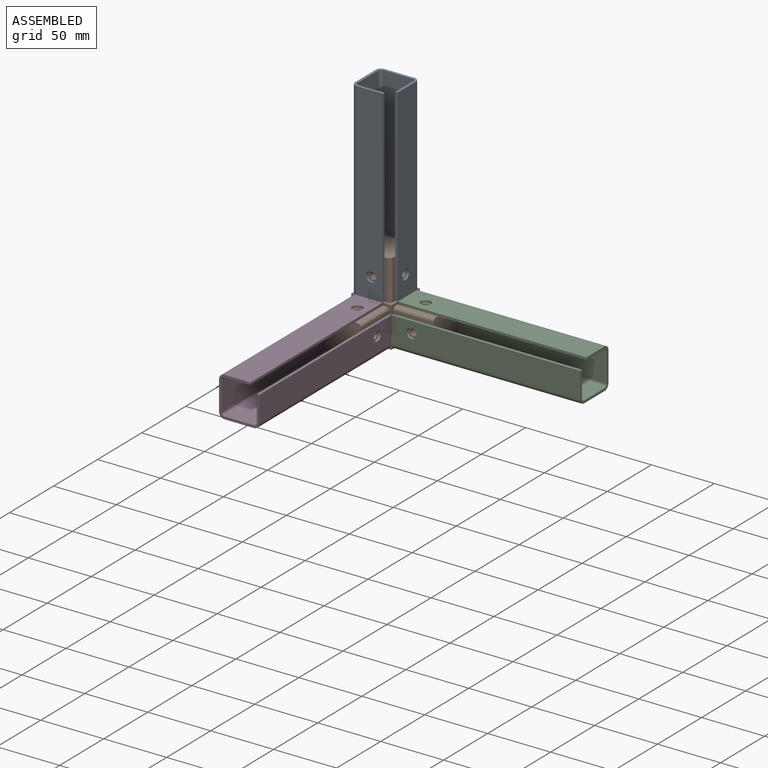
[diagram: assembled view]
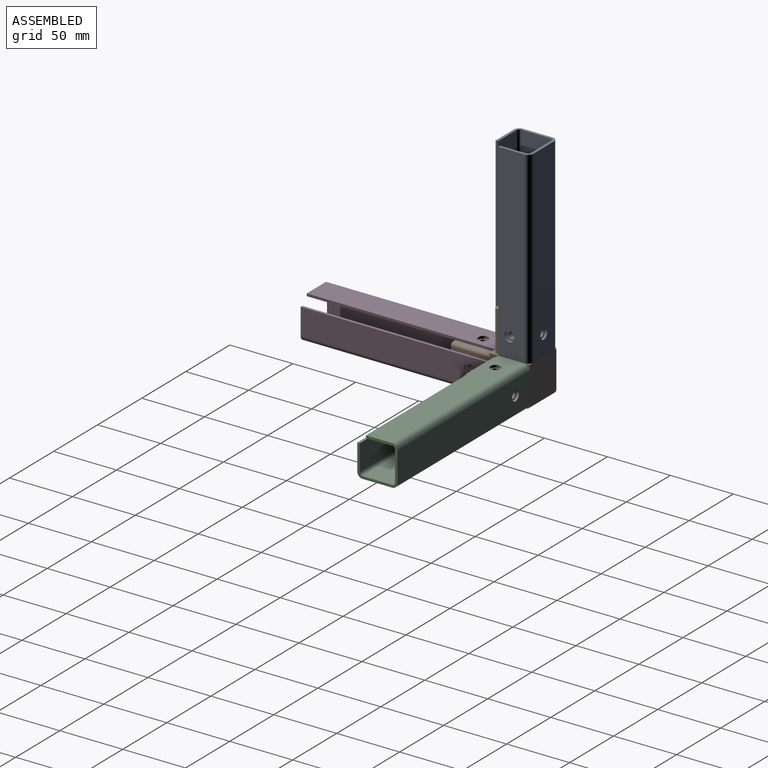
[diagram: assembled view, second angle]
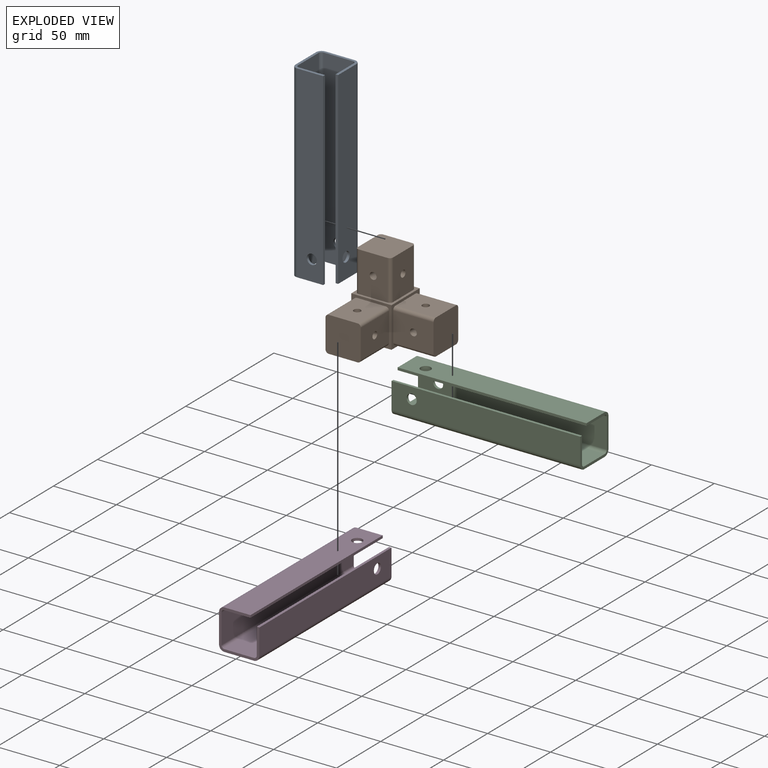
[diagram: exploded view]
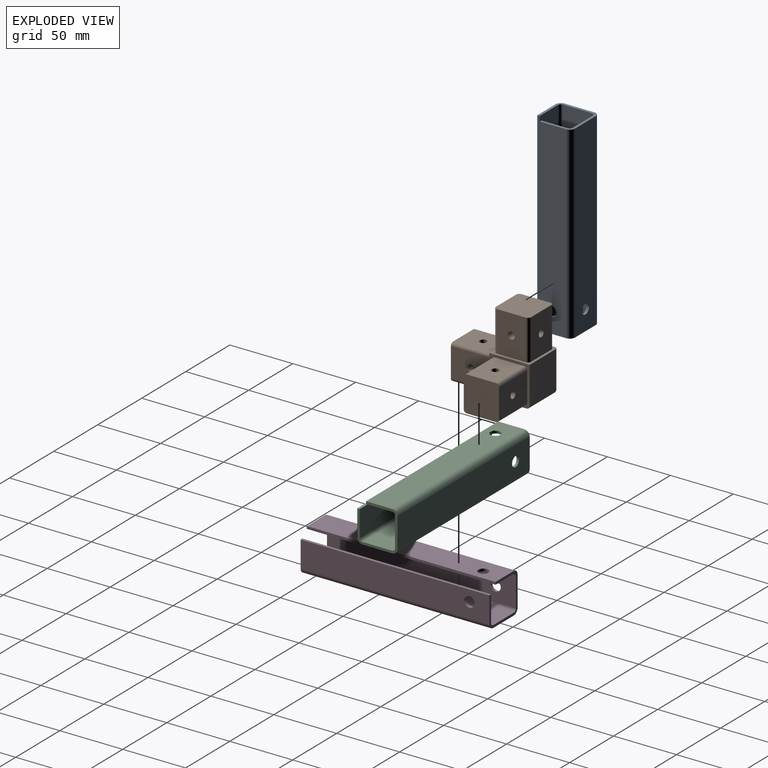
[diagram: exploded view, second angle]
ASSEMBLY  parts=4 mates=3
PART A: 34 faces, bbox 32x32x150 mm
  f0: plane 23.4x2mm, normal (0,0,1), area 46.8mm2, adj f3,f4,f20,f30
  f1: cylinder r=4mm len=8mm, axis (0,1,0), area 50.3mm2, adj f3,f4
  f2: plane 23.4x2mm, normal (0,0,-1), area 46.8mm2, adj f3,f4,f21,f31
  f3: plane 150x23.4mm, normal (0,1,0), area 3459.7mm2, adj f0,f1,f2,f22,f32
  f4: plane 150x23.4mm, normal (0,-1,0), area 3459.7mm2, adj f0,f1,f2,f23,f33
  f5: plane 23.4x2mm, normal (0,0,1), area 46.8mm2, adj f8,f9,f17,f20
  f6: cylinder r=4mm len=8mm, axis (-1,0,0), area 50.3mm2, adj f8,f9
  f7: plane 23.4x2mm, normal (0,0,-1), area 46.8mm2, adj f8,f9,f16,f21
  f8: plane 150x23.4mm, normal (-1,0,0), area 3459.7mm2, adj f5,f6,f7,f18,f22
  f9: plane 150x23.4mm, normal (1,0,0), area 3459.7mm2, adj f5,f6,f7,f19,f23
  f10: plane 150x2mm, normal (1,0,0), area 300mm2, adj f11,f13,f14,f15
  f11: plane 20.7x2mm, normal (0,0,1), area 41.4mm2, adj f10,f14,f15,f17
  f12: cylinder r=4mm len=8mm, axis (0,-1,0), area 50.3mm2, adj f14,f15
  f13: plane 20.7x2mm, normal (0,0,-1), area 41.4mm2, adj f10,f14,f15,f16
  f14: plane 150x20.7mm, normal (0,-1,0), area 3054.7mm2, adj f10,f11,f12,f13,f18
  f15: plane 150x20.7mm, normal (0,1,0), area 3054.7mm2, adj f10,f11,f12,f13,f19
  f16: plane 4.3x4.3mm, normal (0,0,-1), area 10.4mm2, adj f7,f13,f18,f19
  f17: plane 4.3x4.3mm, normal (0,0,1), area 10.4mm2, adj f5,f11,f18,f19
  f18: cylinder r=4.3mm len=150mm, axis (0,0,-1), area 1013.2mm2, adj f8,f14,f16,f17
  f19: cylinder r=2.3mm len=150mm, axis (0,0,-1), area 541.9mm2, adj f9,f15,f16,f17
  f20: plane 4.3x4.3mm, normal (0,0,1), area 10.4mm2, adj f0,f5,f22,f23
  f21: plane 4.3x4.3mm, normal (0,0,-1), area 10.4mm2, adj f2,f7,f22,f23
  f22: cylinder r=4.3mm len=150mm, axis (0,0,1), area 1013.2mm2, adj f3,f8,f20,f21
  f23: cylinder r=2.3mm len=150mm, axis (0,0,1), area 541.9mm2, adj f4,f9,f20,f21
  f24: plane 150x2mm, normal (0,-1,0), area 300mm2, adj f25,f27,f28,f29
  f25: plane 20.7x2mm, normal (0,0,-1), area 41.4mm2, adj f24,f28,f29,f31
  f26: cylinder r=4mm len=8mm, axis (1,0,0), area 50.3mm2, adj f28,f29
  f27: plane 20.7x2mm, normal (0,0,1), area 41.4mm2, adj f24,f28,f29,f30
  f28: plane 150x20.7mm, normal (1,0,0), area 3054.7mm2, adj f24,f25,f26,f27,f32
  f29: plane 150x20.7mm, normal (-1,0,0), area 3054.7mm2, adj f24,f25,f26,f27,f33
  f30: plane 4.3x4.3mm, normal (0,0,1), area 10.4mm2, adj f0,f27,f32,f33
  f31: plane 4.3x4.3mm, normal (0,0,-1), area 10.4mm2, adj f2,f25,f32,f33
  f32: cylinder r=4.3mm len=150mm, axis (0,0,1), area 1013.2mm2, adj f3,f28,f30,f31
  f33: cylinder r=2.3mm len=150mm, axis (0,0,1), area 541.9mm2, adj f4,f29,f30,f31
PART B: 61 faces, bbox 64x64x64 mm
  f0: plane 32x32mm, normal (1,0,0), area 244mm2, adj f1,f3,f4,f5,f16,f17,f18,f19
  f1: plane 29.5x29.5mm, normal (0,1,0), area 870.2mm2, adj f0,f4,f58,f60
  f2: plane 29.5x29.5mm, normal (-1,0,0), area 870.2mm2, adj f3,f4,f57,f60
  f3: plane 32x32mm, normal (0,-1,0), area 244mm2, adj f0,f2,f4,f5,f11,f12,f13,f14
  f4: plane 32x32mm, normal (0,0,1), area 244mm2, adj f0,f1,f2,f3,f6,f7,f8,f9
  f5: plane 29.5x29.5mm, normal (0,0,-1), area 870.2mm2, adj f0,f3,f57,f58
  f6: plane 32x23mm, normal (0,1,0), area 712.2mm2, adj f4,f10,f41,f53,f56
  f7: plane 32x23mm, normal (-1,0,0), area 712.2mm2, adj f4,f10,f37,f53,f54
  f8: plane 32x23mm, normal (0,-1,0), area 712.2mm2, adj f4,f10,f39,f54,f55
  f9: plane 32x23mm, normal (1,0,0), area 712.2mm2, adj f4,f10,f43,f55,f56
  f10: plane 28x28mm, normal (0,0,1), area 778.6mm2, adj f6,f7,f8,f9,f53,f54,f55,f56
  f11: plane 32x23mm, normal (0,0,-1), area 712.2mm2, adj f3,f15,f29,f49,f52
  f12: plane 32x23mm, normal (1,0,0), area 712.2mm2, adj f3,f15,f31,f49,f50
  f13: plane 32x23mm, normal (0,0,1), area 712.2mm2, adj f3,f15,f33,f50,f51
  f14: plane 32x23mm, normal (-1,0,0), area 712.2mm2, adj f3,f15,f35,f51,f52
  f15: plane 28x28mm, normal (0,-1,0), area 778.6mm2, adj f11,f12,f13,f14,f49,f50,f51,f52
  f16: plane 32x23mm, normal (0,0,-1), area 712.2mm2, adj f0,f20,f23,f45,f48
  f17: plane 32x23mm, normal (0,1,0), area 712.2mm2, adj f0,f20,f21,f45,f46
  f18: plane 32x23mm, normal (0,0,1), area 712.2mm2, adj f0,f20,f25,f46,f47
  f19: plane 32x23mm, normal (0,-1,0), area 712.2mm2, adj f0,f20,f27,f47,f48
  f20: plane 28x28mm, normal (1,0,0), area 778.6mm2, adj f16,f17,f18,f19,f45,f46,f47,f48
  f21: cylinder r=2.75mm len=7.5mm, axis (0,1,0), area 129.6mm2, adj f17,f22
  f22: plane 5.5x5.5mm, normal (0,1,0), area 23.8mm2, adj f21
  f23: cylinder r=2.75mm len=7.5mm, axis (0,0,-1), area 129.6mm2, adj f16,f24
  f24: plane 5.5x5.5mm, normal (0,0,-1), area 23.8mm2, adj f23
  f25: cylinder r=2.75mm len=7.5mm, axis (0,0,1), area 129.6mm2, adj f18,f26
  f26: plane 5.5x5.5mm, normal (0,0,1), area 23.8mm2, adj f25
  f27: cylinder r=2.75mm len=7.5mm, axis (0,-1,0), area 129.6mm2, adj f19,f28
  f28: plane 5.5x5.5mm, normal (0,-1,0), area 23.8mm2, adj f27
  f29: cylinder r=2.75mm len=7.5mm, axis (0,0,-1), area 129.6mm2, adj f11,f30
  f30: plane 5.5x5.5mm, normal (0,0,-1), area 23.8mm2, adj f29
  f31: cylinder r=2.75mm len=7.5mm, axis (1,0,0), area 129.6mm2, adj f12,f32
  f32: plane 5.5x5.5mm, normal (1,0,0), area 23.8mm2, adj f31
  f33: cylinder r=2.75mm len=7.5mm, axis (0,0,1), area 129.6mm2, adj f13,f34
  f34: plane 5.5x5.5mm, normal (0,0,1), area 23.8mm2, adj f33
  f35: cylinder r=2.75mm len=7.5mm, axis (-1,0,0), area 129.6mm2, adj f14,f36
  f36: plane 5.5x5.5mm, normal (-1,0,0), area 23.8mm2, adj f35
  f37: cylinder r=2.75mm len=7.5mm, axis (-1,0,0), area 129.6mm2, adj f7,f38
  f38: plane 5.5x5.5mm, normal (-1,0,0), area 23.8mm2, adj f37
  f39: cylinder r=2.75mm len=7.5mm, axis (0,-1,0), area 129.6mm2, adj f8,f40
  f40: plane 5.5x5.5mm, normal (0,-1,0), area 23.8mm2, adj f39
  f41: cylinder r=2.75mm len=7.5mm, axis (0,1,0), area 129.6mm2, adj f6,f42
  f42: plane 5.5x5.5mm, normal (0,1,0), area 23.8mm2, adj f41
  f43: cylinder r=2.75mm len=7.5mm, axis (1,0,0), area 129.6mm2, adj f9,f44
  f44: plane 5.5x5.5mm, normal (1,0,0), area 23.8mm2, adj f43
  f45: cylinder r=2.5mm len=32mm, axis (-1,0,0), area 125.7mm2, adj f0,f16,f17,f20
  f46: cylinder r=2.5mm len=32mm, axis (-1,0,0), area 125.7mm2, adj f0,f17,f18,f20
  f47: cylinder r=2.5mm len=32mm, axis (-1,0,0), area 125.7mm2, adj f0,f18,f19,f20
  f48: cylinder r=2.5mm len=32mm, axis (-1,0,0), area 125.7mm2, adj f0,f16,f19,f20
  f49: cylinder r=2.5mm len=32mm, axis (0,1,0), area 125.7mm2, adj f3,f11,f12,f15
  f50: cylinder r=2.5mm len=32mm, axis (0,1,0), area 125.7mm2, adj f3,f12,f13,f15
  f51: cylinder r=2.5mm len=32mm, axis (0,1,0), area 125.7mm2, adj f3,f13,f14,f15
  f52: cylinder r=2.5mm len=32mm, axis (0,1,0), area 125.7mm2, adj f3,f11,f14,f15
  f53: cylinder r=2.5mm len=32mm, axis (0,0,-1), area 125.7mm2, adj f4,f6,f7,f10
  f54: cylinder r=2.5mm len=32mm, axis (0,0,1), area 125.7mm2, adj f4,f7,f8,f10
  f55: cylinder r=2.5mm len=32mm, axis (0,0,-1), area 125.7mm2, adj f4,f8,f9,f10
  f56: cylinder r=2.5mm len=32mm, axis (0,0,1), area 125.7mm2, adj f4,f6,f9,f10
  f57: cylinder r=2.5mm len=29.5mm, axis (0,-1,0), area 115.8mm2, adj f2,f3,f5,f59
  f58: cylinder r=2.5mm len=29.5mm, axis (-1,0,0), area 115.8mm2, adj f0,f1,f5,f59
  f59: sphere r=2.5mm, area 9.8mm2, adj f57,f58,f60
  f60: cylinder r=2.5mm len=29.5mm, axis (0,0,-1), area 115.8mm2, adj f1,f2,f4,f59
PART C: same geometry as A
PART D: same geometry as A
PLACE A t=(-44.74,12.21,-12.79)mm
PLACE B t=(-44.74,12.21,-12.79)mm fixed
PLACE C rot(axis=(-0.58,0.58,-0.58),120deg) t=(-60.74,12.21,3.21)mm
PLACE D rot(axis=(0.58,-0.58,0.58),120deg) t=(-44.74,28.21,3.21)mm
MATE fastened C.f4 <-> B.f16  axis (0,0,1) through (-28.74,12.21,-10.79)mm
MATE fastened A.f9 <-> B.f7  axis (1,0,0) through (-58.74,12.21,19.21)mm
MATE fastened D.f9 <-> B.f11  axis (0,0,1) through (-44.74,-3.79,-10.79)mm
